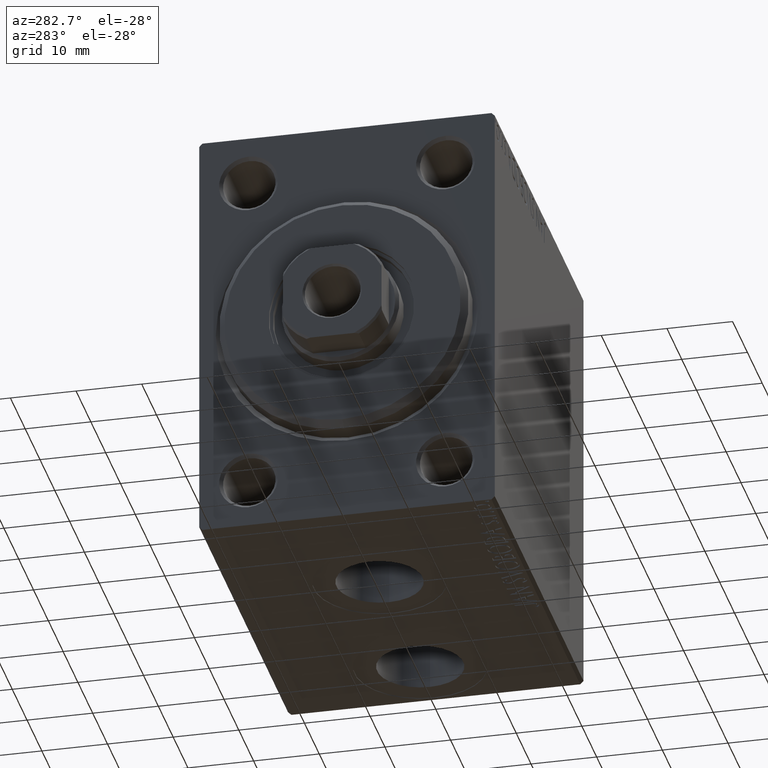
[diagram: clean part render]
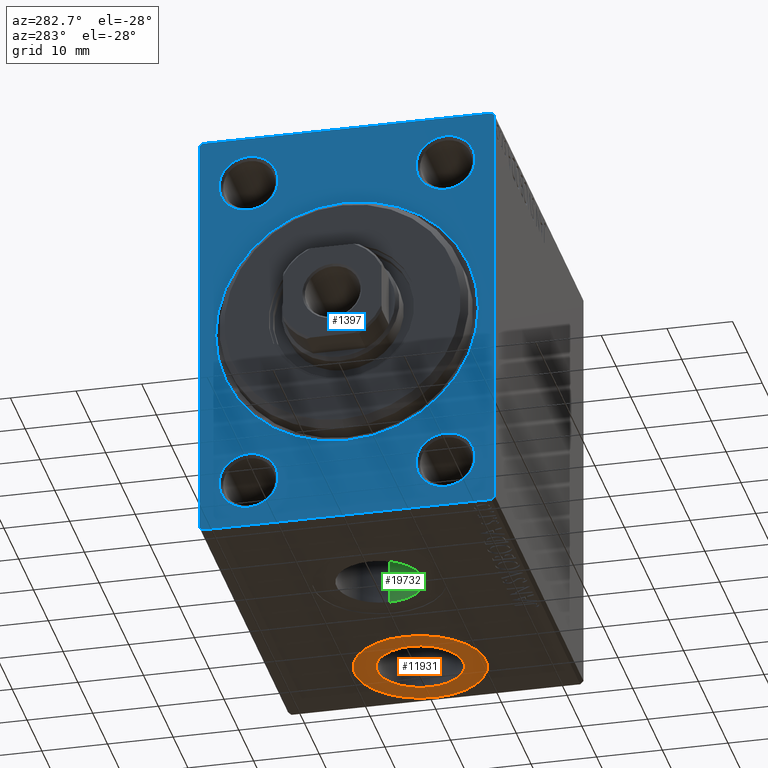
[diagram: same view with three faces highlighted in distinct colors, each labeled with its STEP entity id]
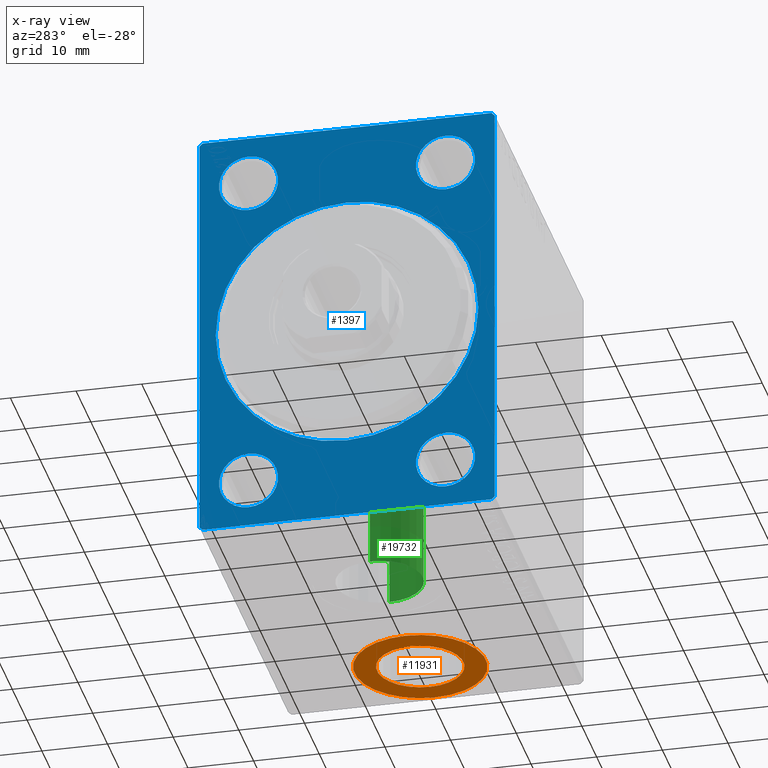
[diagram: x-ray of the same camera — body ghosted, the three highlighted faces saturated]
A machine part, auxiliary view with three faces highlighted in distinct colors.
The next image is the same camera in x-ray (body ghosted, the three faces saturated) — at least one of them is partly hidden behind the body in this view.
Their STEP definitions:

[orange] entity #11931 — the highlighted planar face has unit normal (0, 0, -1).
#530 = EDGE_LOOP ( 'NONE', ( #29152, #21567 ) ) ;
#1005 = DIRECTION ( 'NONE',  ( -1.000000000000000000, 0.000000000000000000, 0.000000000000000000 ) ) ;
#1499 = DIRECTION ( 'NONE',  ( -1.000000000000000000, 0.000000000000000000, 0.000000000000000000 ) ) ;
#2115 = AXIS2_PLACEMENT_3D ( 'NONE', #4012, #43160, #1005 ) ;
#2136 = VERTEX_POINT ( 'NONE', #23324 ) ;
#2442 = CARTESIAN_POINT ( 'NONE',  ( 59.50000000000000000, -5.431318148118349417E-15, -32.40000000000000568 ) ) ;
#3309 = DIRECTION ( 'NONE',  ( 0.000000000000000000, 0.000000000000000000, -1.000000000000000000 ) ) ;
#4012 = CARTESIAN_POINT ( 'NONE',  ( 49.49999999999999289, -6.655964947265702476E-15, -32.40000000000000568 ) ) ;
#4862 = AXIS2_PLACEMENT_3D ( 'NONE', #21108, #17646, #31708 ) ;
#6125 = DIRECTION ( 'NONE',  ( -1.000000000000000000, 0.000000000000000000, 0.000000000000000000 ) ) ;
#6347 = EDGE_CURVE ( 'NONE', #2136, #29574, #42391, .T. ) ;
#11875 = FACE_BOUND ( 'NONE', #29954, .T. ) ;
#11884 = EDGE_CURVE ( 'NONE', #32313, #30623, #22707, .T. ) ;
#11931 = ADVANCED_FACE ( 'NONE', ( #11875, #25950 ), #41107, .T. ) ;
#12356 = ORIENTED_EDGE ( 'NONE', *, *, #11884, .F. ) ;
#13675 = CARTESIAN_POINT ( 'NONE',  ( 49.49999999999999289, -6.655964947265702476E-15, -32.40000000000000568 ) ) ;
#13887 = EDGE_CURVE ( 'NONE', #29574, #2136, #37460, .T. ) ;
#15096 = CARTESIAN_POINT ( 'NONE',  ( 56.07999999999999829, -5.850147353426744223E-15, -32.40000000000000568 ) ) ;
#17646 = DIRECTION ( 'NONE',  ( 0.000000000000000000, 0.000000000000000000, -1.000000000000000000 ) ) ;
#19027 = DIRECTION ( 'NONE',  ( 0.000000000000000000, 0.000000000000000000, -1.000000000000000000 ) ) ;
#20201 = CARTESIAN_POINT ( 'NONE',  ( 49.49999999999999289, -6.655964947265702476E-15, -32.40000000000000568 ) ) ;
#21108 = CARTESIAN_POINT ( 'NONE',  ( 49.49999999999999289, -6.655964947265702476E-15, -32.40000000000000568 ) ) ;
#21567 = ORIENTED_EDGE ( 'NONE', *, *, #13887, .T. ) ;
#22707 = CIRCLE ( 'NONE', #35200, 6.580000000000002736 ) ;
#23324 = CARTESIAN_POINT ( 'NONE',  ( 39.49999999999999289, -6.655964947265702476E-15, -32.40000000000000568 ) ) ;
#24518 = DIRECTION ( 'NONE',  ( -1.000000000000000000, 0.000000000000000000, -0.000000000000000000 ) ) ;
#24522 = AXIS2_PLACEMENT_3D ( 'NONE', #20201, #27582, #6125 ) ;
#25950 = FACE_OUTER_BOUND ( 'NONE', #530, .T. ) ;
#27582 = DIRECTION ( 'NONE',  ( 0.000000000000000000, 0.000000000000000000, -1.000000000000000000 ) ) ;
#29152 = ORIENTED_EDGE ( 'NONE', *, *, #6347, .T. ) ;
#29574 = VERTEX_POINT ( 'NONE', #2442 ) ;
#29643 = CARTESIAN_POINT ( 'NONE',  ( 49.49999999999999289, -6.655964947265702476E-15, -32.40000000000000568 ) ) ;
#29954 = EDGE_LOOP ( 'NONE', ( #12356, #43865 ) ) ;
#30623 = VERTEX_POINT ( 'NONE', #15096 ) ;
#31708 = DIRECTION ( 'NONE',  ( -1.000000000000000000, 0.000000000000000000, 0.000000000000000000 ) ) ;
#32313 = VERTEX_POINT ( 'NONE', #32576 ) ;
#32576 = CARTESIAN_POINT ( 'NONE',  ( 42.91999999999999460, -6.655964947265702476E-15, -32.40000000000000568 ) ) ;
#34470 = AXIS2_PLACEMENT_3D ( 'NONE', #13675, #3309, #24518 ) ;
#35200 = AXIS2_PLACEMENT_3D ( 'NONE', #29643, #19027, #1499 ) ;
#37460 = CIRCLE ( 'NONE', #2115, 10.00000000000000178 ) ;
#41107 = PLANE ( 'NONE',  #34470 ) ;
#41417 = CIRCLE ( 'NONE', #24522, 6.580000000000002736 ) ;
#42310 = EDGE_CURVE ( 'NONE', #30623, #32313, #41417, .T. ) ;
#42391 = CIRCLE ( 'NONE', #4862, 10.00000000000000178 ) ;
#43160 = DIRECTION ( 'NONE',  ( 0.000000000000000000, 0.000000000000000000, -1.000000000000000000 ) ) ;
#43865 = ORIENTED_EDGE ( 'NONE', *, *, #42310, .F. ) ;

[blue] entity #1397 — the highlighted planar face has unit normal (1, 0, 0).
#4 = ORIENTED_EDGE ( 'NONE', *, *, #4581, .T. ) ;
#235 = AXIS2_PLACEMENT_3D ( 'NONE', #5372, #6034, #5807 ) ;
#581 = DIRECTION ( 'NONE',  ( 1.000000000000000000, 0.000000000000000000, 0.000000000000000000 ) ) ;
#838 = EDGE_CURVE ( 'NONE', #43962, #13216, #1868, .T. ) ;
#928 = CARTESIAN_POINT ( 'NONE',  ( 0.000000000000000000, 15.00000000000000178, -20.49999999999998224 ) ) ;
#1232 = DIRECTION ( 'NONE',  ( 1.000000000000000000, 0.000000000000000000, 0.000000000000000000 ) ) ;
#1397 = ADVANCED_FACE ( 'NONE', ( #25317, #32674, #4784, #40041, #39361, #4108 ), #18169, .F. ) ;
#1456 = ORIENTED_EDGE ( 'NONE', *, *, #19785, .F. ) ;
#1604 = CARTESIAN_POINT ( 'NONE',  ( 0.000000000000000000, 15.00000000000000178, 20.49999999999998224 ) ) ;
#1631 = EDGE_LOOP ( 'NONE', ( #8603, #13194 ) ) ;
#1829 = EDGE_CURVE ( 'NONE', #44070, #28419, #3390, .T. ) ;
#1868 = CIRCLE ( 'NONE', #37922, 4.499999999999990230 ) ;
#2498 = CIRCLE ( 'NONE', #40762, 4.500000000000017764 ) ;
#2936 = DIRECTION ( 'NONE',  ( 1.000000000000000000, 0.000000000000000000, 0.000000000000000000 ) ) ;
#3105 = CIRCLE ( 'NONE', #28888, 4.499999999999990230 ) ;
#3390 = CIRCLE ( 'NONE', #37951, 19.99999999999998934 ) ;
#4108 = FACE_OUTER_BOUND ( 'NONE', #5451, .T. ) ;
#4387 = AXIS2_PLACEMENT_3D ( 'NONE', #25934, #36286, #10956 ) ;
#4581 = EDGE_CURVE ( 'NONE', #9810, #39806, #9343, .T. ) ;
#4784 = FACE_BOUND ( 'NONE', #32986, .T. ) ;
#4909 = DIRECTION ( 'NONE',  ( -0.000000000000000000, -0.7071067811865426878, 0.7071067811865524577 ) ) ;
#5372 = CARTESIAN_POINT ( 'NONE',  ( 0.000000000000000000, -15.00000000000000000, 25.00000000000000000 ) ) ;
#5451 = EDGE_LOOP ( 'NONE', ( #44727, #8619, #27263, #38366, #1456, #32082, #42565, #18274 ) ) ;
#5749 = CARTESIAN_POINT ( 'NONE',  ( 0.000000000000000000, -15.00000000000000000, 20.50000000000001066 ) ) ;
#5807 = DIRECTION ( 'NONE',  ( 0.000000000000000000, 0.000000000000000000, -1.000000000000000000 ) ) ;
#5817 = CIRCLE ( 'NONE', #4387, 4.499999999999990230 ) ;
#6034 = DIRECTION ( 'NONE',  ( 1.000000000000000000, 0.000000000000000000, 0.000000000000000000 ) ) ;
#6073 = CARTESIAN_POINT ( 'NONE',  ( 0.000000000000000000, 0.000000000000000000, 0.000000000000000000 ) ) ;
#8075 = LINE ( 'NONE', #24925, #34731 ) ;
#8603 = ORIENTED_EDGE ( 'NONE', *, *, #33198, .T. ) ;
#8619 = ORIENTED_EDGE ( 'NONE', *, *, #19987, .T. ) ;
#9343 = CIRCLE ( 'NONE', #35104, 4.500000000000017764 ) ;
#9810 = VERTEX_POINT ( 'NONE', #1604 ) ;
#10718 = EDGE_CURVE ( 'NONE', #37854, #41579, #36352, .T. ) ;
#10956 = DIRECTION ( 'NONE',  ( 0.000000000000000000, 0.000000000000000000, -1.000000000000000000 ) ) ;
#11068 = VERTEX_POINT ( 'NONE', #45013 ) ;
#11470 = DIRECTION ( 'NONE',  ( 0.000000000000000000, 0.000000000000000000, -1.000000000000000000 ) ) ;
#11525 = LINE ( 'NONE', #32729, #27460 ) ;
#11710 = EDGE_CURVE ( 'NONE', #42955, #11068, #24121, .T. ) ;
#11814 = CIRCLE ( 'NONE', #14024, 19.99999999999998934 ) ;
#12825 = DIRECTION ( 'NONE',  ( 0.000000000000000000, -0.7071067811865376918, -0.7071067811865573427 ) ) ;
#13078 = VECTOR ( 'NONE', #44849, 1000.000000000000114 ) ;
#13194 = ORIENTED_EDGE ( 'NONE', *, *, #1829, .T. ) ;
#13216 = VERTEX_POINT ( 'NONE', #5749 ) ;
#13491 = CIRCLE ( 'NONE', #235, 4.499999999999990230 ) ;
#13674 = AXIS2_PLACEMENT_3D ( 'NONE', #22308, #32229, #11470 ) ;
#13836 = ORIENTED_EDGE ( 'NONE', *, *, #43757, .T. ) ;
#14024 = AXIS2_PLACEMENT_3D ( 'NONE', #32806, #1232, #26137 ) ;
#14530 = DIRECTION ( 'NONE',  ( 0.000000000000000000, 0.000000000000000000, -1.000000000000000000 ) ) ;
#15068 = ORIENTED_EDGE ( 'NONE', *, *, #35751, .T. ) ;
#15069 = ORIENTED_EDGE ( 'NONE', *, *, #28448, .T. ) ;
#15718 = CARTESIAN_POINT ( 'NONE',  ( 0.000000000000000000, 0.000000000000000000, 19.99999999999998934 ) ) ;
#15911 = CARTESIAN_POINT ( 'NONE',  ( 0.000000000000000000, -15.00000000000000000, 29.49999999999999289 ) ) ;
#17728 = CARTESIAN_POINT ( 'NONE',  ( 0.000000000000000000, 22.50000000000000711, -32.50000000000000711 ) ) ;
#18128 = CARTESIAN_POINT ( 'NONE',  ( 0.000000000000000000, 22.50000000000000711, -32.00000000000002132 ) ) ;
#18169 = PLANE ( 'NONE',  #13674 ) ;
#18246 = CARTESIAN_POINT ( 'NONE',  ( 0.000000000000000000, 15.00000000000000178, -25.00000000000000000 ) ) ;
#18274 = ORIENTED_EDGE ( 'NONE', *, *, #32362, .T. ) ;
#18928 = DIRECTION ( 'NONE',  ( 1.000000000000000000, 0.000000000000000000, 0.000000000000000000 ) ) ;
#19785 = EDGE_CURVE ( 'NONE', #37854, #11068, #41903, .T. ) ;
#19987 = EDGE_CURVE ( 'NONE', #42209, #39900, #36308, .T. ) ;
#20649 = ORIENTED_EDGE ( 'NONE', *, *, #43958, .T. ) ;
#21815 = CARTESIAN_POINT ( 'NONE',  ( 0.000000000000000000, -22.49999999999999289, -32.00000000000001421 ) ) ;
#22241 = DIRECTION ( 'NONE',  ( 1.000000000000000000, 0.000000000000000000, 0.000000000000000000 ) ) ;
#22308 = CARTESIAN_POINT ( 'NONE',  ( 0.000000000000000000, 0.000000000000000000, 0.000000000000000000 ) ) ;
#22627 = DIRECTION ( 'NONE',  ( 1.000000000000000000, 0.000000000000000000, 0.000000000000000000 ) ) ;
#23210 = CARTESIAN_POINT ( 'NONE',  ( 0.000000000000000000, -22.49999999999999289, 31.99999999999998579 ) ) ;
#23567 = DIRECTION ( 'NONE',  ( 0.000000000000000000, 1.000000000000000000, 0.000000000000000000 ) ) ;
#23602 = DIRECTION ( 'NONE',  ( 1.000000000000000000, 0.000000000000000000, 0.000000000000000000 ) ) ;
#23718 = CARTESIAN_POINT ( 'NONE',  ( 0.000000000000000000, -15.00000000000000000, -20.50000000000001066 ) ) ;
#24121 = LINE ( 'NONE', #30814, #13078 ) ;
#24925 = CARTESIAN_POINT ( 'NONE',  ( 0.000000000000000000, 22.50000000000000000, 32.49999999999999289 ) ) ;
#25317 = FACE_BOUND ( 'NONE', #1631, .T. ) ;
#25477 = CARTESIAN_POINT ( 'NONE',  ( 0.000000000000000000, -15.00000000000000000, 25.00000000000000000 ) ) ;
#25672 = EDGE_CURVE ( 'NONE', #42955, #39900, #8075, .T. ) ;
#25934 = CARTESIAN_POINT ( 'NONE',  ( 0.000000000000000000, -15.00000000000000000, -25.00000000000000000 ) ) ;
#26107 = ORIENTED_EDGE ( 'NONE', *, *, #838, .T. ) ;
#26137 = DIRECTION ( 'NONE',  ( 0.000000000000000000, 0.000000000000000000, -1.000000000000000000 ) ) ;
#26319 = CARTESIAN_POINT ( 'NONE',  ( 0.000000000000000000, 15.00000000000000178, 25.00000000000000000 ) ) ;
#26445 = CARTESIAN_POINT ( 'NONE',  ( 0.000000000000000000, 22.50000000000000711, -32.00000000000002132 ) ) ;
#26585 = VECTOR ( 'NONE', #41455, 1000.000000000000000 ) ;
#27040 = LINE ( 'NONE', #41065, #40540 ) ;
#27134 = EDGE_CURVE ( 'NONE', #43911, #27630, #3105, .T. ) ;
#27263 = ORIENTED_EDGE ( 'NONE', *, *, #25672, .F. ) ;
#27439 = CARTESIAN_POINT ( 'NONE',  ( 0.000000000000000000, 2.449293598294705330E-15, -19.99999999999998934 ) ) ;
#27460 = VECTOR ( 'NONE', #14530, 1000.000000000000000 ) ;
#27630 = VERTEX_POINT ( 'NONE', #23718 ) ;
#27847 = DIRECTION ( 'NONE',  ( 0.000000000000000000, 0.000000000000000000, -1.000000000000000000 ) ) ;
#28080 = CARTESIAN_POINT ( 'NONE',  ( 0.000000000000000000, 15.00000000000000178, -25.00000000000000000 ) ) ;
#28409 = CARTESIAN_POINT ( 'NONE',  ( 0.000000000000000000, -15.00000000000000000, -29.49999999999999289 ) ) ;
#28419 = VERTEX_POINT ( 'NONE', #15718 ) ;
#28448 = EDGE_CURVE ( 'NONE', #39806, #9810, #2498, .T. ) ;
#28597 = ORIENTED_EDGE ( 'NONE', *, *, #29826, .T. ) ;
#28888 = AXIS2_PLACEMENT_3D ( 'NONE', #32165, #581, #42744 ) ;
#29317 = EDGE_LOOP ( 'NONE', ( #28597, #38783 ) ) ;
#29592 = LINE ( 'NONE', #36482, #38326 ) ;
#29826 = EDGE_CURVE ( 'NONE', #27630, #43911, #5817, .T. ) ;
#30006 = DIRECTION ( 'NONE',  ( 0.000000000000000000, 0.000000000000000000, -1.000000000000000000 ) ) ;
#30814 = CARTESIAN_POINT ( 'NONE',  ( 0.000000000000000000, 22.00000000000001421, 32.49999999999999289 ) ) ;
#31603 = DIRECTION ( 'NONE',  ( 0.000000000000000000, 0.000000000000000000, -1.000000000000000000 ) ) ;
#31773 = AXIS2_PLACEMENT_3D ( 'NONE', #28080, #2936, #27847 ) ;
#32082 = ORIENTED_EDGE ( 'NONE', *, *, #10718, .T. ) ;
#32165 = CARTESIAN_POINT ( 'NONE',  ( 0.000000000000000000, -15.00000000000000000, -25.00000000000000000 ) ) ;
#32229 = DIRECTION ( 'NONE',  ( 1.000000000000000000, 0.000000000000000000, 0.000000000000000000 ) ) ;
#32362 = EDGE_CURVE ( 'NONE', #42175, #38732, #29592, .T. ) ;
#32674 = FACE_BOUND ( 'NONE', #29317, .T. ) ;
#32729 = CARTESIAN_POINT ( 'NONE',  ( 0.000000000000000000, -22.49999999999999289, 32.49999999999998579 ) ) ;
#32806 = CARTESIAN_POINT ( 'NONE',  ( 0.000000000000000000, 0.000000000000000000, 0.000000000000000000 ) ) ;
#32986 = EDGE_LOOP ( 'NONE', ( #26107, #13836 ) ) ;
#33198 = EDGE_CURVE ( 'NONE', #28419, #44070, #11814, .T. ) ;
#33215 = EDGE_CURVE ( 'NONE', #42175, #41579, #27040, .T. ) ;
#33937 = VECTOR ( 'NONE', #39995, 1000.000000000000114 ) ;
#34222 = CARTESIAN_POINT ( 'NONE',  ( 0.000000000000000000, 15.00000000000000178, 29.50000000000001776 ) ) ;
#34731 = VECTOR ( 'NONE', #42423, 1000.000000000000000 ) ;
#34843 = AXIS2_PLACEMENT_3D ( 'NONE', #18246, #18928, #39654 ) ;
#35104 = AXIS2_PLACEMENT_3D ( 'NONE', #26319, #22627, #30006 ) ;
#35751 = EDGE_CURVE ( 'NONE', #42816, #42661, #36929, .T. ) ;
#36286 = DIRECTION ( 'NONE',  ( 1.000000000000000000, 0.000000000000000000, 0.000000000000000000 ) ) ;
#36308 = LINE ( 'NONE', #36999, #33937 ) ;
#36352 = LINE ( 'NONE', #26445, #44004 ) ;
#36482 = CARTESIAN_POINT ( 'NONE',  ( 0.000000000000000000, -22.00000000000000711, -32.50000000000000711 ) ) ;
#36929 = CIRCLE ( 'NONE', #31773, 4.500000000000017764 ) ;
#36999 = CARTESIAN_POINT ( 'NONE',  ( 0.000000000000000000, -22.49999999999999289, 31.99999999999998579 ) ) ;
#37579 = CARTESIAN_POINT ( 'NONE',  ( 0.000000000000000000, 22.00000000000002132, -32.50000000000000711 ) ) ;
#37854 = VERTEX_POINT ( 'NONE', #18128 ) ;
#37922 = AXIS2_PLACEMENT_3D ( 'NONE', #25477, #22241, #43198 ) ;
#37951 = AXIS2_PLACEMENT_3D ( 'NONE', #6073, #23602, #40659 ) ;
#37962 = EDGE_LOOP ( 'NONE', ( #15069, #4 ) ) ;
#38041 = DIRECTION ( 'NONE',  ( 1.000000000000000000, 0.000000000000000000, 0.000000000000000000 ) ) ;
#38121 = CARTESIAN_POINT ( 'NONE',  ( 0.000000000000000000, -21.99999999999997868, 32.49999999999998579 ) ) ;
#38326 = VECTOR ( 'NONE', #4909, 1000.000000000000000 ) ;
#38366 = ORIENTED_EDGE ( 'NONE', *, *, #11710, .T. ) ;
#38732 = VERTEX_POINT ( 'NONE', #21815 ) ;
#38783 = ORIENTED_EDGE ( 'NONE', *, *, #27134, .T. ) ;
#39361 = FACE_BOUND ( 'NONE', #39797, .T. ) ;
#39654 = DIRECTION ( 'NONE',  ( 0.000000000000000000, 0.000000000000000000, -1.000000000000000000 ) ) ;
#39797 = EDGE_LOOP ( 'NONE', ( #20649, #15068 ) ) ;
#39804 = CARTESIAN_POINT ( 'NONE',  ( 0.000000000000000000, -22.00000000000000711, -32.50000000000000711 ) ) ;
#39806 = VERTEX_POINT ( 'NONE', #34222 ) ;
#39900 = VERTEX_POINT ( 'NONE', #38121 ) ;
#39995 = DIRECTION ( 'NONE',  ( -0.000000000000000000, 0.7071067811865474617, 0.7071067811865474617 ) ) ;
#40041 = FACE_BOUND ( 'NONE', #37962, .T. ) ;
#40540 = VECTOR ( 'NONE', #23567, 1000.000000000000000 ) ;
#40659 = DIRECTION ( 'NONE',  ( 0.000000000000000000, 0.000000000000000000, -1.000000000000000000 ) ) ;
#40762 = AXIS2_PLACEMENT_3D ( 'NONE', #44958, #38041, #31603 ) ;
#40773 = CARTESIAN_POINT ( 'NONE',  ( 0.000000000000000000, 15.00000000000000178, -29.50000000000001776 ) ) ;
#41065 = CARTESIAN_POINT ( 'NONE',  ( 0.000000000000000000, -22.49999999999999289, -32.50000000000000711 ) ) ;
#41455 = DIRECTION ( 'NONE',  ( 0.000000000000000000, -1.067522139062650425E-16, 1.000000000000000000 ) ) ;
#41579 = VERTEX_POINT ( 'NONE', #37579 ) ;
#41903 = LINE ( 'NONE', #17728, #26585 ) ;
#42175 = VERTEX_POINT ( 'NONE', #39804 ) ;
#42209 = VERTEX_POINT ( 'NONE', #23210 ) ;
#42423 = DIRECTION ( 'NONE',  ( 0.000000000000000000, -1.000000000000000000, -1.541976423090495633E-16 ) ) ;
#42565 = ORIENTED_EDGE ( 'NONE', *, *, #33215, .F. ) ;
#42604 = EDGE_CURVE ( 'NONE', #42209, #38732, #11525, .T. ) ;
#42661 = VERTEX_POINT ( 'NONE', #928 ) ;
#42744 = DIRECTION ( 'NONE',  ( 0.000000000000000000, 0.000000000000000000, -1.000000000000000000 ) ) ;
#42816 = VERTEX_POINT ( 'NONE', #40773 ) ;
#42955 = VERTEX_POINT ( 'NONE', #43273 ) ;
#43198 = DIRECTION ( 'NONE',  ( 0.000000000000000000, 0.000000000000000000, -1.000000000000000000 ) ) ;
#43273 = CARTESIAN_POINT ( 'NONE',  ( 0.000000000000000000, 22.00000000000001421, 32.49999999999999289 ) ) ;
#43757 = EDGE_CURVE ( 'NONE', #13216, #43962, #13491, .T. ) ;
#43911 = VERTEX_POINT ( 'NONE', #28409 ) ;
#43958 = EDGE_CURVE ( 'NONE', #42661, #42816, #45141, .T. ) ;
#43962 = VERTEX_POINT ( 'NONE', #15911 ) ;
#44004 = VECTOR ( 'NONE', #12825, 1000.000000000000114 ) ;
#44070 = VERTEX_POINT ( 'NONE', #27439 ) ;
#44727 = ORIENTED_EDGE ( 'NONE', *, *, #42604, .F. ) ;
#44849 = DIRECTION ( 'NONE',  ( -0.000000000000000000, 0.7071067811865573427, -0.7071067811865376918 ) ) ;
#44958 = CARTESIAN_POINT ( 'NONE',  ( 0.000000000000000000, 15.00000000000000178, 25.00000000000000000 ) ) ;
#45013 = CARTESIAN_POINT ( 'NONE',  ( 0.000000000000000000, 22.50000000000000000, 32.00000000000002132 ) ) ;
#45141 = CIRCLE ( 'NONE', #34843, 4.500000000000017764 ) ;

[green] entity #19732 — the highlighted cylindrical surface (partial cylindrical patch) has radius 6.58 mm, axis along (-0, -0, -1).
#704 = CIRCLE ( 'NONE', #22786, 6.580000000000002736 ) ;
#951 = CARTESIAN_POINT ( 'NONE',  ( 15.41999999999999638, -2.910683231281019398E-15, -19.50000000000000355 ) ) ;
#2286 = AXIS2_PLACEMENT_3D ( 'NONE', #44458, #13116, #27194 ) ;
#2373 = DIRECTION ( 'NONE',  ( 0.000000000000000000, 0.000000000000000000, -1.000000000000000000 ) ) ;
#5608 = CARTESIAN_POINT ( 'NONE',  ( 22.00000000000000000, -2.910683231281019398E-15, -19.50000000000000355 ) ) ;
#5767 = ORIENTED_EDGE ( 'NONE', *, *, #43916, .F. ) ;
#7785 = DIRECTION ( 'NONE',  ( -1.000000000000000000, 0.000000000000000000, 0.000000000000000000 ) ) ;
#8004 = DIRECTION ( 'NONE',  ( 0.000000000000000000, 0.000000000000000000, -1.000000000000000000 ) ) ;
#8985 = FACE_OUTER_BOUND ( 'NONE', #25170, .T. ) ;
#9911 = DIRECTION ( 'NONE',  ( -0.000000000000000000, -0.000000000000000000, -1.000000000000000000 ) ) ;
#13116 = DIRECTION ( 'NONE',  ( -0.000000000000000000, -0.000000000000000000, -1.000000000000000000 ) ) ;
#14720 = CIRCLE ( 'NONE', #40486, 6.580000000000002736 ) ;
#15145 = CARTESIAN_POINT ( 'NONE',  ( 22.00000000000000000, -2.910683231281019398E-15, -32.40000000000000568 ) ) ;
#15985 = DIRECTION ( 'NONE',  ( -1.000000000000000000, 0.000000000000000000, 0.000000000000000000 ) ) ;
#16028 = VERTEX_POINT ( 'NONE', #17980 ) ;
#16811 = EDGE_CURVE ( 'NONE', #16028, #37949, #14720, .T. ) ;
#17753 = CARTESIAN_POINT ( 'NONE',  ( 28.58000000000000185, -2.104865637442060750E-15, -19.50000000000000355 ) ) ;
#17980 = CARTESIAN_POINT ( 'NONE',  ( 28.58000000000000185, -2.104865637442060750E-15, -19.50000000000000355 ) ) ;
#18793 = CARTESIAN_POINT ( 'NONE',  ( 15.41999999999999638, -2.910683231281019398E-15, -32.40000000000000568 ) ) ;
#19732 = ADVANCED_FACE ( 'NONE', ( #8985 ), #44684, .F. ) ;
#21666 = ORIENTED_EDGE ( 'NONE', *, *, #29464, .T. ) ;
#22786 = AXIS2_PLACEMENT_3D ( 'NONE', #15145, #8004, #7785 ) ;
#23634 = VECTOR ( 'NONE', #9911, 1000.000000000000000 ) ;
#25170 = EDGE_LOOP ( 'NONE', ( #33285, #28763, #21666, #5767 ) ) ;
#27194 = DIRECTION ( 'NONE',  ( -1.000000000000000000, 0.000000000000000000, 0.000000000000000000 ) ) ;
#27675 = LINE ( 'NONE', #17753, #23634 ) ;
#27941 = DIRECTION ( 'NONE',  ( -0.000000000000000000, -0.000000000000000000, -1.000000000000000000 ) ) ;
#28101 = VERTEX_POINT ( 'NONE', #18793 ) ;
#28763 = ORIENTED_EDGE ( 'NONE', *, *, #34325, .T. ) ;
#29464 = EDGE_CURVE ( 'NONE', #30966, #28101, #704, .T. ) ;
#30966 = VERTEX_POINT ( 'NONE', #39013 ) ;
#33285 = ORIENTED_EDGE ( 'NONE', *, *, #16811, .F. ) ;
#33375 = VECTOR ( 'NONE', #27941, 1000.000000000000000 ) ;
#34325 = EDGE_CURVE ( 'NONE', #16028, #30966, #27675, .T. ) ;
#37949 = VERTEX_POINT ( 'NONE', #43673 ) ;
#39013 = CARTESIAN_POINT ( 'NONE',  ( 28.58000000000000185, -2.104865637442060750E-15, -32.40000000000000568 ) ) ;
#40486 = AXIS2_PLACEMENT_3D ( 'NONE', #5608, #2373, #15985 ) ;
#42436 = LINE ( 'NONE', #951, #33375 ) ;
#43673 = CARTESIAN_POINT ( 'NONE',  ( 15.41999999999999638, -2.910683231281019398E-15, -19.50000000000000355 ) ) ;
#43916 = EDGE_CURVE ( 'NONE', #37949, #28101, #42436, .T. ) ;
#44458 = CARTESIAN_POINT ( 'NONE',  ( 22.00000000000000000, -2.910683231281019398E-15, -19.50000000000000355 ) ) ;
#44684 = CYLINDRICAL_SURFACE ( 'NONE', #2286, 6.580000000000002736 ) ;